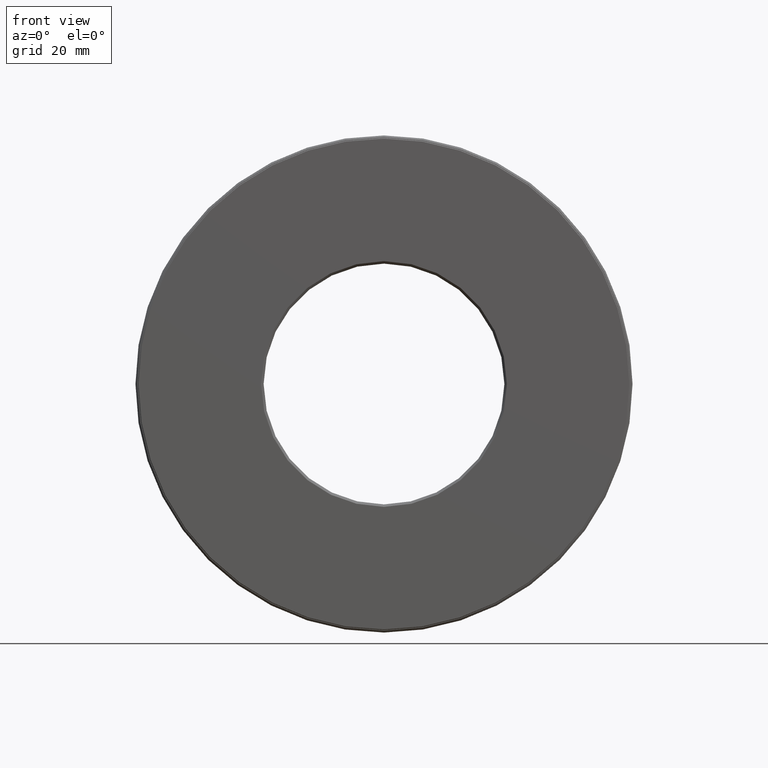
[diagram: clean part render]
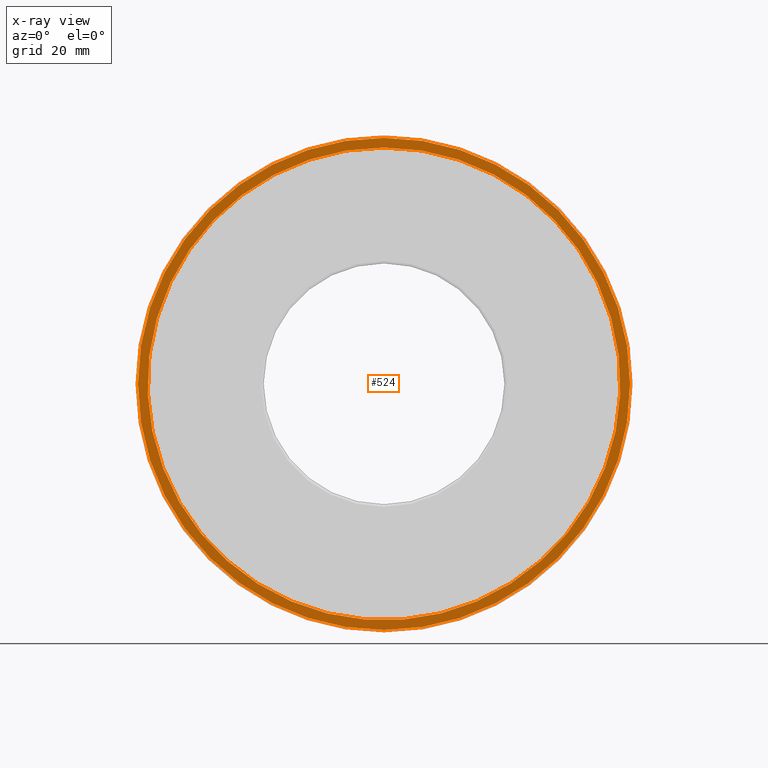
[diagram: x-ray — body ghosted, one internal face saturated and labeled with its STEP entity id]
A machine part, front view, then the same camera in x-ray: the body is ghosted and one INTERNAL B-rep face — a face not visible from any outside direction — is saturated and labeled: STEP entity #524.
In plain terms, the highlighted planar face has unit normal (0, -1, 0).
Its self-contained STEP definition (entity closure, byte-faithful):
#10 = FACE_BOUND ( 'NONE', #367, .T. ) ;
#49 = VERTEX_POINT ( 'NONE', #58 ) ;
#51 = DIRECTION ( 'NONE',  ( -0.0000000000000000000, 1.000000000000000000, -0.0000000000000000000 ) ) ;
#58 = CARTESIAN_POINT ( 'NONE',  ( 0.0000000000000000000, 0.6062499999999995100, 1.902249999999999600 ) ) ;
#72 = DIRECTION ( 'NONE',  ( 0.0000000000000000000, -1.000000000000000000, 0.0000000000000000000 ) ) ;
#75 = CIRCLE ( 'NONE', #442, 1.979999999999999500 ) ;
#106 = ORIENTED_EDGE ( 'NONE', *, *, #216, .T. ) ;
#135 = AXIS2_PLACEMENT_3D ( 'NONE', #395, #72, #212 ) ;
#136 = EDGE_LOOP ( 'NONE', ( #106 ) ) ;
#212 = DIRECTION ( 'NONE',  ( 0.0000000000000000000, -0.0000000000000000000, -1.000000000000000000 ) ) ;
#216 = EDGE_CURVE ( 'NONE', #449, #449, #75, .T. ) ;
#229 = AXIS2_PLACEMENT_3D ( 'NONE', #585, #346, #589 ) ;
#266 = CARTESIAN_POINT ( 'NONE',  ( 0.0000000000000000000, 0.6062499999999996200, 1.979999999999999500 ) ) ;
#318 = CARTESIAN_POINT ( 'NONE',  ( 0.0000000000000000000, 0.6062499999999996200, 0.0000000000000000000 ) ) ;
#322 = FACE_OUTER_BOUND ( 'NONE', #136, .T. ) ;
#346 = DIRECTION ( 'NONE',  ( -0.0000000000000000000, 1.000000000000000000, -0.0000000000000000000 ) ) ;
#367 = EDGE_LOOP ( 'NONE', ( #479 ) ) ;
#395 = CARTESIAN_POINT ( 'NONE',  ( 1.065069354443054000E-015, 0.6062499999999996200, 0.0000000000000000000 ) ) ;
#442 = AXIS2_PLACEMENT_3D ( 'NONE', #318, #51, #561 ) ;
#443 = PLANE ( 'NONE',  #135 ) ;
#449 = VERTEX_POINT ( 'NONE', #266 ) ;
#479 = ORIENTED_EDGE ( 'NONE', *, *, #501, .F. ) ;
#501 = EDGE_CURVE ( 'NONE', #49, #49, #548, .T. ) ;
#524 = ADVANCED_FACE ( 'NONE', ( #10, #322 ), #443, .F. ) ;
#548 = CIRCLE ( 'NONE', #229, 1.902249999999999600 ) ;
#561 = DIRECTION ( 'NONE',  ( 0.0000000000000000000, 0.0000000000000000000, 1.000000000000000000 ) ) ;
#585 = CARTESIAN_POINT ( 'NONE',  ( 0.0000000000000000000, 0.6062499999999995100, 0.0000000000000000000 ) ) ;
#589 = DIRECTION ( 'NONE',  ( 0.0000000000000000000, 0.0000000000000000000, 1.000000000000000000 ) ) ;